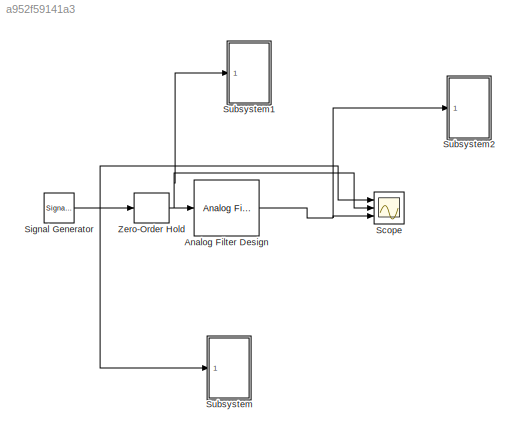
MODEL slx_a952f59141a3
KIND model
CONFIG AbsTol = auto
CONFIG EnableMultiTasking = off
CONFIG FixedStep = auto
CONFIG MaxStep = 0.001
CONFIG MinStep = auto
CONFIG RelTol = 1e-3
CONFIG SampleTimeConstraint = Unconstrained
CONFIG Solver = VariableStepAuto
CONFIG SolverName = VariableStepAuto
CONFIG StartTime = 0.0
CONFIG StopTime = 1000
BLOCK [Reference] Analog Filter Design  REF=dsparch4/Analog
Filter Design
  Ports = [1, 1]
  SourceBlock = dsparch4/Analog\nFilter Design
  SourceType = Analog Filter Design
BLOCK [Scope] Scope
  NumInputPorts = 3
  Ports = [3]
  ScopeSpecificationString = Simulink.scopes.TimeScopeBlockCfg('CurrentConfiguration', extmgr.ConfigurationSet(extmgr.Configuration('Core','General UI',true),extmgr.Configuration('Core','Source UI',true),extmgr.Configuration('Sources','WiredSimulink',true),extmgr.Configuration('Visuals','Time Domain',true,'SerializedDisplays',{struct('MinYLimReal','-1.25','MaxYLimReal','1.25','YLabelReal','','MinYLimMag','0.00000','MaxYLimMag...<+1386ch>
BLOCK [SignalGenerator] Signal Generator
  Ports = [0, 1]
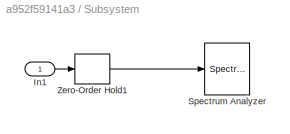
BLOCK [SubSystem] Subsystem
  Ports = [1]
  RequestExecContextInheritance = off
  Variant = off
BLOCK [Inport] Subsystem/In1
  IconDisplay = Port number
BLOCK [SpectrumAnalyzer] Subsystem/Spectrum Analyzer
  NumInputPorts = 1
  Ports = [1]
  ScopeSpecificationString = spbscopes.SpectrumAnalyzerBlockCfg('CurrentConfiguration', extmgr.ConfigurationSet(extmgr.Configuration('Core','General UI',true),extmgr.Configuration('Core','Source UI',true),extmgr.Configuration('Sources','WiredSimulink',true),extmgr.Configuration('Visuals','Spectrum',true,'AxesProperties',struct('Color',[0 0 0],'XColor',[0.686274509803922 0.686274509803922 0.686274509803922],'YColor',[0.6862745...<+1136ch>
BLOCK [ZeroOrderHold] Subsystem/Zero-Order Hold1
  SampleTime = 1/20
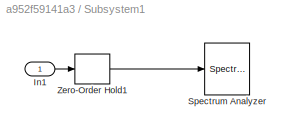
BLOCK [SubSystem] Subsystem1
  Ports = [1]
  RequestExecContextInheritance = off
  Variant = off
BLOCK [Inport] Subsystem1/In1
  IconDisplay = Port number
BLOCK [SpectrumAnalyzer] Subsystem1/Spectrum Analyzer
  NumInputPorts = 1
  Ports = [1]
  ScopeSpecificationString = spbscopes.SpectrumAnalyzerBlockCfg('CurrentConfiguration', extmgr.ConfigurationSet(extmgr.Configuration('Core','General UI',true),extmgr.Configuration('Core','Source UI',true),extmgr.Configuration('Sources','WiredSimulink',true),extmgr.Configuration('Visuals','Spectrum',true,'AxesProperties',struct('Color',[0 0 0],'XColor',[0.686274509803922 0.686274509803922 0.686274509803922],'YColor',[0.6862745...<+1163ch>
BLOCK [ZeroOrderHold] Subsystem1/Zero-Order Hold1
  SampleTime = 1/20
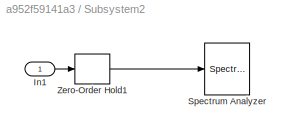
BLOCK [SubSystem] Subsystem2
  Ports = [1]
  RequestExecContextInheritance = off
  Variant = off
BLOCK [Inport] Subsystem2/In1
  IconDisplay = Port number
BLOCK [SpectrumAnalyzer] Subsystem2/Spectrum Analyzer
  NumInputPorts = 1
  Ports = [1]
  ScopeSpecificationString = spbscopes.SpectrumAnalyzerBlockCfg('CurrentConfiguration', extmgr.ConfigurationSet(extmgr.Configuration('Core','General UI',true),extmgr.Configuration('Core','Source UI',true),extmgr.Configuration('Sources','WiredSimulink',true),extmgr.Configuration('Visuals','Spectrum',true,'AxesProperties',struct('Color',[0 0 0],'XColor',[0.686274509803922 0.686274509803922 0.686274509803922],'YColor',[0.6862745...<+1163ch>
BLOCK [ZeroOrderHold] Subsystem2/Zero-Order Hold1
  SampleTime = 1/20
BLOCK [ZeroOrderHold] Zero-Order Hold
  SampleTime = 1/5
NET Analog Filter Design:1 -> Scope:3, Subsystem2:1
NET Signal Generator:1 -> Scope:1, Subsystem:1, Zero-Order Hold:1
LINE Subsystem/In1:1 -> Subsystem/Zero-Order Hold1:1
LINE Subsystem/Zero-Order Hold1:1 -> Subsystem/Spectrum Analyzer:1
LINE Subsystem1/In1:1 -> Subsystem1/Zero-Order Hold1:1
LINE Subsystem1/Zero-Order Hold1:1 -> Subsystem1/Spectrum Analyzer:1
LINE Subsystem2/In1:1 -> Subsystem2/Zero-Order Hold1:1
LINE Subsystem2/Zero-Order Hold1:1 -> Subsystem2/Spectrum Analyzer:1
NET Zero-Order Hold:1 -> Analog Filter Design:1, Scope:2, Subsystem1:1
note: NET lines group one-source signal fan-out (src -> all destinations, sorted); 1:1 wires keep LINE
